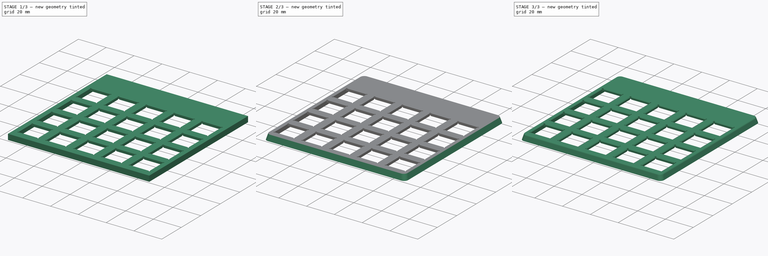
[diagram: build sequence overview — one tinted view per stage of 3, left to right]
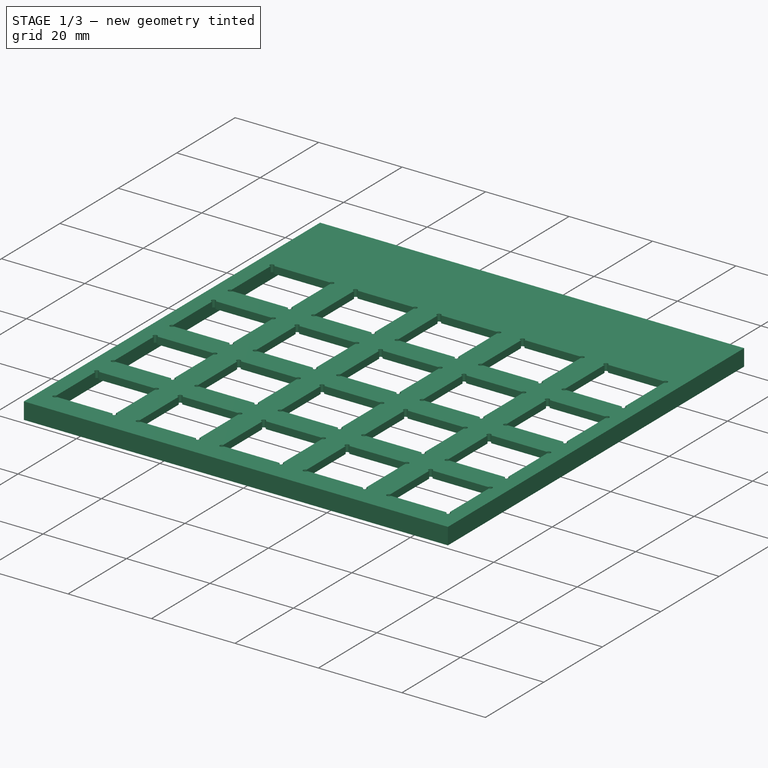
[diagram: stage 1 of 3 — iso view after this stage's code; geometry added in this stage tinted green]
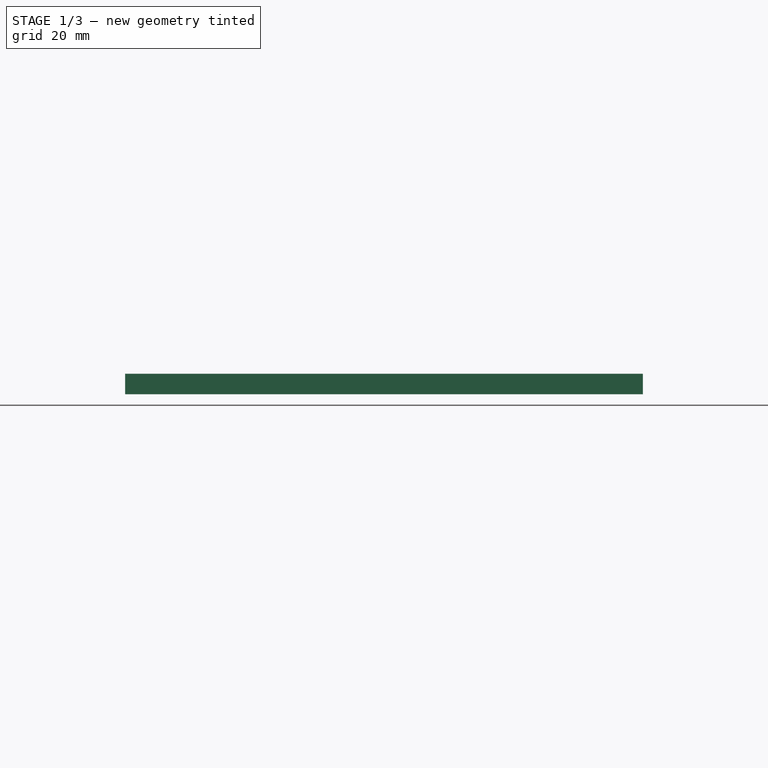
[diagram: stage 1 of 3 — front view after this stage's code; geometry added in this stage tinted green]
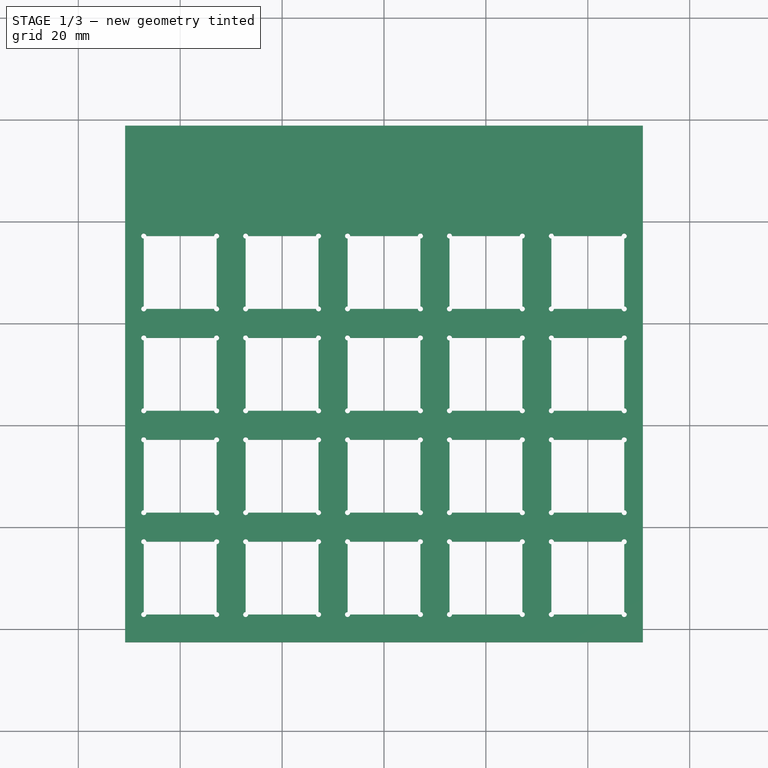
[diagram: stage 1 of 3 — top view after this stage's code; geometry added in this stage tinted green]
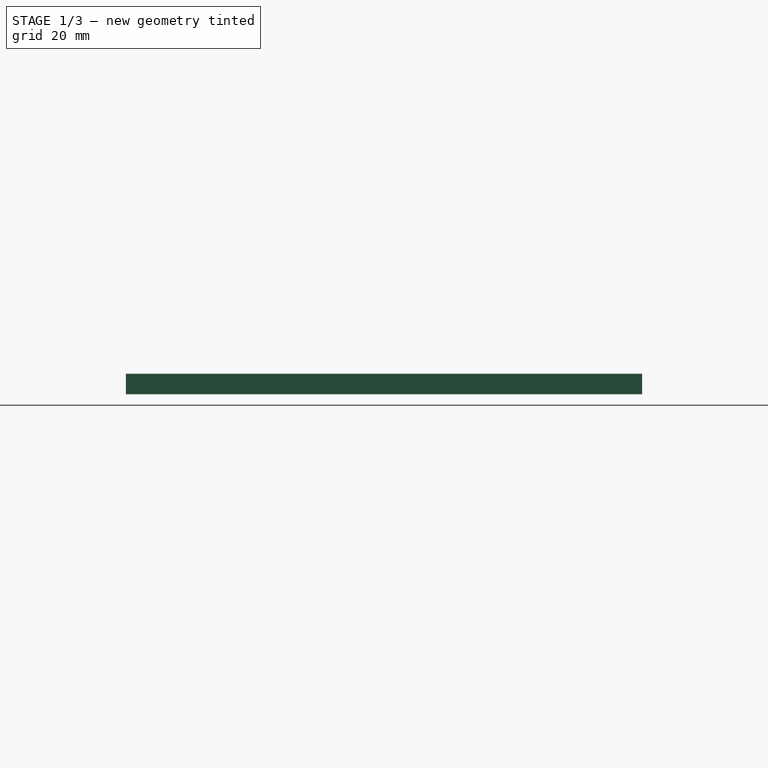
[diagram: stage 1 of 3 — right view after this stage's code; geometry added in this stage tinted green]
FCSTD DOCUMENT  (FreeCAD 0.18R4 (GitTag))
Label: Gehäuse oben
License: All rights reserved
LicenseURL: http://en.wikipedia.org/wiki/All_rights_reserved
objects: Sketcher::SketchObject×4, PartDesign::Pocket×3, PartDesign::Fillet×2, PartDesign::Pad×1, PartDesign::Chamfer×1, PartDesign::Body×1
note: 16 computed .brp shape members not serialized (recipe doc carries the construction recipe); baked Part::Feature solids carry a one-line shape summary decoded from their .brp

FEATURE [Sketcher::SketchObject] Sketch
  MapMode = 5
  Support = -> [XY_Plane]
  sketch-geometry (168):
    g0: LineSegment StartX=-47.15 StartY=-3.35 StartZ=0 EndX=-47.15 EndY=-16.65 EndZ=0
    g1: ArcOfCircle CenterX=-47.15 CenterY=-17.15 CenterZ=0 NormalX=0 NormalY=0 NormalZ=1 AngleXU=0 Radius=0.5 StartAngle=1.5708 EndAngle=6.28319
    g2: LineSegment StartX=-46.65 StartY=-17.15 StartZ=0 EndX=-33.35 EndY=-17.15 EndZ=0
    g3: ArcOfCircle CenterX=-32.85 CenterY=-17.15 CenterZ=0 NormalX=0 NormalY=0 NormalZ=1 AngleXU=0 Radius=0.5 StartAngle=3.14159 EndAngle=7.85398
    g4: LineSegment StartX=-32.85 StartY=-16.65 StartZ=0 EndX=-32.85 EndY=-3.35 EndZ=0
    g5: ArcOfCircle CenterX=-32.85 CenterY=-2.85 CenterZ=0 NormalX=0 NormalY=0 NormalZ=1 AngleXU=0 Radius=0.5 StartAngle=4.71239 EndAngle=9.42478
    g6: LineSegment StartX=-33.35 StartY=-2.85 StartZ=0 EndX=-46.65 EndY=-2.85 EndZ=0
    g7: ArcOfCircle CenterX=-47.15 CenterY=-2.85 CenterZ=0 NormalX=0 NormalY=0 NormalZ=1 AngleXU=0 Radius=0.5 StartAngle=0 EndAngle=4.71239
    g8: LineSegment StartX=-47.15 StartY=-23.35 StartZ=0 EndX=-47.15 EndY=-36.65 EndZ=0
    g9: ArcOfCircle CenterX=-47.15 CenterY=-37.15 CenterZ=0 NormalX=0 NormalY=0 NormalZ=1 AngleXU=0 Radius=0.5 StartAngle=1.5708 EndAngle=6.28319
    g10: LineSegment StartX=-46.65 StartY=-37.15 StartZ=0 EndX=-33.35 EndY=-37.15 EndZ=0
    g11: ArcOfCircle CenterX=-32.85 CenterY=-37.15 CenterZ=0 NormalX=0 NormalY=0 NormalZ=1 AngleXU=0 Radius=0.5 StartAngle=3.14159 EndAngle=7.85398
    g12: LineSegment StartX=-32.85 StartY=-36.65 StartZ=0 EndX=-32.85 EndY=-23.35 EndZ=0
    g13: ArcOfCircle CenterX=-32.85 CenterY=-22.85 CenterZ=0 NormalX=0 NormalY=0 NormalZ=1 AngleXU=0 Radius=0.5 StartAngle=4.71239 EndAngle=9.42478
    g14: LineSegment StartX=-33.35 StartY=-22.85 StartZ=0 EndX=-46.65 EndY=-22.85 EndZ=0
    g15: ArcOfCircle CenterX=-47.15 CenterY=-22.85 CenterZ=0 NormalX=0 NormalY=0 NormalZ=1 AngleXU=0 Radius=0.5 StartAngle=2.4e-15 EndAngle=4.71239
    g16: LineSegment StartX=-47.15 StartY=36.65 StartZ=0 EndX=-47.15 EndY=23.35 EndZ=0
    g17: ArcOfCircle CenterX=-47.15 CenterY=22.85 CenterZ=0 NormalX=0 NormalY=0 NormalZ=1 AngleXU=0 Radius=0.5 StartAngle=1.5708 EndAngle=6.28319
    g18: LineSegment StartX=-46.65 StartY=22.85 StartZ=0 EndX=-33.35 EndY=22.85 EndZ=0
    g19: ArcOfCircle CenterX=-32.85 CenterY=22.85 CenterZ=0 NormalX=0 NormalY=0 NormalZ=1 AngleXU=0 Radius=0.5 StartAngle=3.14159 EndAngle=7.85398
    g20: LineSegment StartX=-32.85 StartY=23.35 StartZ=0 EndX=-32.85 EndY=36.65 EndZ=0
    g21: ArcOfCircle CenterX=-32.85 CenterY=37.15 CenterZ=0 NormalX=0 NormalY=0 NormalZ=1 AngleXU=0 Radius=0.5 StartAngle=4.71239 EndAngle=9.42478
    g22: LineSegment StartX=-33.35 StartY=37.15 StartZ=0 EndX=-46.65 EndY=37.15 EndZ=0
    g23: ArcOfCircle CenterX=-47.15 CenterY=37.15 CenterZ=0 NormalX=0 NormalY=0 NormalZ=1 AngleXU=0 Radius=0.5 StartAngle=-3.6e-15 EndAngle=4.71239
    g24: LineSegment StartX=-47.15 StartY=16.65 StartZ=0 EndX=-47.15 EndY=3.35 EndZ=0
    g25: ArcOfCircle CenterX=-47.15 CenterY=2.85 CenterZ=0 NormalX=0 NormalY=0 NormalZ=1 AngleXU=0 Radius=0.5 StartAngle=1.5708 EndAngle=6.28319
    g26: LineSegment StartX=-46.65 StartY=2.85 StartZ=0 EndX=-33.35 EndY=2.85 EndZ=0
    g27: ArcOfCircle CenterX=-32.85 CenterY=2.85 CenterZ=0 NormalX=0 NormalY=0 NormalZ=1 AngleXU=0 Radius=0.5 StartAngle=3.14159 EndAngle=7.85398
    g28: LineSegment StartX=-32.85 StartY=3.35 StartZ=0 EndX=-32.85 EndY=16.65 EndZ=0
    g29: ArcOfCircle CenterX=-32.85 CenterY=17.15 CenterZ=0 NormalX=0 NormalY=0 NormalZ=1 AngleXU=0 Radius=0.5 StartAngle=4.71239 EndAngle=9.42478
    g30: LineSegment StartX=-33.35 StartY=17.15 StartZ=0 EndX=-46.65 EndY=17.15 EndZ=0
    g31: ArcOfCircle CenterX=-47.15 CenterY=17.15 CenterZ=0 NormalX=0 NormalY=0 NormalZ=1 AngleXU=0 Radius=0.5 StartAngle=-3.6e-15 EndAngle=4.71239
    g32: LineSegment StartX=-27.15 StartY=-3.35 StartZ=0 EndX=-27.15 EndY=-16.65 EndZ=0
    g33: ArcOfCircle CenterX=-27.15 CenterY=-17.15 CenterZ=0 NormalX=0 NormalY=0 NormalZ=1 AngleXU=0 Radius=0.5 StartAngle=1.5708 EndAngle=6.28319
    g34: LineSegment StartX=-26.65 StartY=-17.15 StartZ=0 EndX=-13.35 EndY=-17.15 EndZ=0
    g35: ArcOfCircle CenterX=-12.85 CenterY=-17.15 CenterZ=0 NormalX=0 NormalY=0 NormalZ=1 AngleXU=0 Radius=0.5 StartAngle=3.14159 EndAngle=7.85398
    g36: LineSegment StartX=-12.85 StartY=-16.65 StartZ=0 EndX=-12.85 EndY=-3.35 EndZ=0
    g37: ArcOfCircle CenterX=-12.85 CenterY=-2.85 CenterZ=0 NormalX=0 NormalY=0 NormalZ=1 AngleXU=0 Radius=0.5 StartAngle=4.71239 EndAngle=9.42478
    g38: LineSegment StartX=-13.35 StartY=-2.85 StartZ=0 EndX=-26.65 EndY=-2.85 EndZ=0
    g39: ArcOfCircle CenterX=-27.15 CenterY=-2.85 CenterZ=0 NormalX=0 NormalY=0 NormalZ=1 AngleXU=0 Radius=0.5 StartAngle=-9e-16 EndAngle=4.71239
    g40: LineSegment StartX=-27.15 StartY=-23.35 StartZ=0 EndX=-27.15 EndY=-36.65 EndZ=0
    g41: ArcOfCircle CenterX=-27.15 CenterY=-37.15 CenterZ=0 NormalX=0 NormalY=0 NormalZ=1 AngleXU=0 Radius=0.5 StartAngle=1.5708 EndAngle=6.28319
    g42: LineSegment StartX=-26.65 StartY=-37.15 StartZ=0 EndX=-13.35 EndY=-37.15 EndZ=0
    g43: ArcOfCircle CenterX=-12.85 CenterY=-37.15 CenterZ=0 NormalX=0 NormalY=0 NormalZ=1 AngleXU=0 Radius=0.5 StartAngle=3.14159 EndAngle=7.85398
    g44: LineSegment StartX=-12.85 StartY=-36.65 StartZ=0 EndX=-12.85 EndY=-23.35 EndZ=0
    g45: ArcOfCircle CenterX=-12.85 CenterY=-22.85 CenterZ=0 NormalX=0 NormalY=0 NormalZ=1 AngleXU=0 Radius=0.5 StartAngle=4.71239 EndAngle=9.42478
    g46: LineSegment StartX=-13.35 StartY=-22.85 StartZ=0 EndX=-26.65 EndY=-22.85 EndZ=0
    g47: ArcOfCircle CenterX=-27.15 CenterY=-22.85 CenterZ=0 NormalX=0 NormalY=0 NormalZ=1 AngleXU=0 Radius=0.5 StartAngle=-1.8e-15 EndAngle=4.71239
    g48: LineSegment StartX=-27.15 StartY=36.65 StartZ=0 EndX=-27.15 EndY=23.35 EndZ=0
    g49: ArcOfCircle CenterX=-27.15 CenterY=22.85 CenterZ=0 NormalX=0 NormalY=0 NormalZ=1 AngleXU=0 Radius=0.5 StartAngle=1.5708 EndAngle=6.28319
    g50: LineSegment StartX=-26.65 StartY=22.85 StartZ=0 EndX=-13.35 EndY=22.85 EndZ=0
    g51: ArcOfCircle CenterX=-12.85 CenterY=22.85 CenterZ=0 NormalX=0 NormalY=0 NormalZ=1 AngleXU=0 Radius=0.5 StartAngle=3.14159 EndAngle=7.85398
    g52: LineSegment StartX=-12.85 StartY=23.35 StartZ=0 EndX=-12.85 EndY=36.65 EndZ=0
    g53: ArcOfCircle CenterX=-12.85 CenterY=37.15 CenterZ=0 NormalX=0 NormalY=0 NormalZ=1 AngleXU=0 Radius=0.5 StartAngle=4.71239 EndAngle=9.42478
    g54: LineSegment StartX=-13.35 StartY=37.15 StartZ=0 EndX=-26.65 EndY=37.15 EndZ=0
    g55: ArcOfCircle CenterX=-27.15 CenterY=37.15 CenterZ=0 NormalX=0 NormalY=0 NormalZ=1 AngleXU=0 Radius=0.5 StartAngle=-1.8e-15 EndAngle=4.71239
    g56: LineSegment StartX=-27.15 StartY=16.65 StartZ=0 EndX=-27.15 EndY=3.35 EndZ=0
    g57: ArcOfCircle CenterX=-27.15 CenterY=2.85 CenterZ=0 NormalX=0 NormalY=0 NormalZ=1 AngleXU=0 Radius=0.5 StartAngle=1.5708 EndAngle=6.28319
    g58: LineSegment StartX=-26.65 StartY=2.85 StartZ=0 EndX=-13.35 EndY=2.85 EndZ=0
    g59: ArcOfCircle CenterX=-12.85 CenterY=2.85 CenterZ=0 NormalX=0 NormalY=0 NormalZ=1 AngleXU=0 Radius=0.5 StartAngle=3.14159 EndAngle=7.85398
    g60: LineSegment StartX=-12.85 StartY=3.35 StartZ=0 EndX=-12.85 EndY=16.65 EndZ=0
    g61: ArcOfCircle CenterX=-12.85 CenterY=17.15 CenterZ=0 NormalX=0 NormalY=0 NormalZ=1 AngleXU=0 Radius=0.5 StartAngle=4.71239 EndAngle=9.42478
    g62: LineSegment StartX=-13.35 StartY=17.15 StartZ=0 EndX=-26.65 EndY=17.15 EndZ=0
    g63: ArcOfCircle CenterX=-27.15 CenterY=17.15 CenterZ=0 NormalX=0 NormalY=0 NormalZ=1 AngleXU=0 Radius=0.5 StartAngle=5e-16 EndAngle=4.71239
    g64: LineSegment StartX=-7.15 StartY=-3.35 StartZ=0 EndX=-7.15 EndY=-16.65 EndZ=0
    g65: ArcOfCircle CenterX=-7.15 CenterY=-17.15 CenterZ=0 NormalX=0 NormalY=0 NormalZ=1 AngleXU=0 Radius=0.5 StartAngle=1.5708 EndAngle=6.28319
    g66: LineSegment StartX=-6.65 StartY=-17.15 StartZ=0 EndX=6.65 EndY=-17.15 EndZ=0
    g67: ArcOfCircle CenterX=7.15 CenterY=-17.15 CenterZ=0 NormalX=0 NormalY=0 NormalZ=1 AngleXU=0 Radius=0.5 StartAngle=3.14159 EndAngle=7.85398
    g68: LineSegment StartX=7.15 StartY=-16.65 StartZ=0 EndX=7.15 EndY=-3.35 EndZ=0
    g69: ArcOfCircle CenterX=7.15 CenterY=-2.85 CenterZ=0 NormalX=0 NormalY=0 NormalZ=1 AngleXU=0 Radius=0.5 StartAngle=4.71239 EndAngle=9.42478
    g70: LineSegment StartX=6.65 StartY=-2.85 StartZ=0 EndX=-6.65 EndY=-2.85 EndZ=0
    g71: ArcOfCircle CenterX=-7.15 CenterY=-2.85 CenterZ=0 NormalX=0 NormalY=0 NormalZ=1 AngleXU=0 Radius=0.5 StartAngle=0 EndAngle=4.71239
    g72: LineSegment StartX=-7.15 StartY=-23.35 StartZ=0 EndX=-7.15 EndY=-36.65 EndZ=0
    g73: ArcOfCircle CenterX=-7.15 CenterY=-37.15 CenterZ=0 NormalX=0 NormalY=0 NormalZ=1 AngleXU=0 Radius=0.5 StartAngle=1.5708 EndAngle=6.28319
    g74: LineSegment StartX=-6.65 StartY=-37.15 StartZ=0 EndX=6.65 EndY=-37.15 EndZ=0
    g75: ArcOfCircle CenterX=7.15 CenterY=-37.15 CenterZ=0 NormalX=0 NormalY=0 NormalZ=1 AngleXU=0 Radius=0.5 StartAngle=3.14159 EndAngle=7.85398
    g76: LineSegment StartX=7.15 StartY=-36.65 StartZ=0 EndX=7.15 EndY=-23.35 EndZ=0
    g77: ArcOfCircle CenterX=7.15 CenterY=-22.85 CenterZ=0 NormalX=0 NormalY=0 NormalZ=1 AngleXU=0 Radius=0.5 StartAngle=4.71239 EndAngle=9.42478
    g78: LineSegment StartX=6.65 StartY=-22.85 StartZ=0 EndX=-6.65 EndY=-22.85 EndZ=0
    g79: ArcOfCircle CenterX=-7.15 CenterY=-22.85 CenterZ=0 NormalX=0 NormalY=0 NormalZ=1 AngleXU=0 Radius=0.5 StartAngle=-3.6e-15 EndAngle=4.71239
    g80: LineSegment StartX=-7.15 StartY=36.65 StartZ=0 EndX=-7.15 EndY=23.35 EndZ=0
    g81: ArcOfCircle CenterX=-7.15 CenterY=22.85 CenterZ=0 NormalX=0 NormalY=0 NormalZ=1 AngleXU=0 Radius=0.5 StartAngle=1.5708 EndAngle=6.28319
    g82: LineSegment StartX=-6.65 StartY=22.85 StartZ=0 EndX=6.65 EndY=22.85 EndZ=0
    g83: ArcOfCircle CenterX=7.15 CenterY=22.85 CenterZ=0 NormalX=0 NormalY=0 NormalZ=1 AngleXU=0 Radius=0.5 StartAngle=3.14159 EndAngle=7.85398
    g84: LineSegment StartX=7.15 StartY=23.35 StartZ=0 EndX=7.15 EndY=36.65 EndZ=0
    g85: ArcOfCircle CenterX=7.15 CenterY=37.15 CenterZ=0 NormalX=0 NormalY=0 NormalZ=1 AngleXU=0 Radius=0.5 StartAngle=4.71239 EndAngle=9.42478
    g86: LineSegment StartX=6.65 StartY=37.15 StartZ=0 EndX=-6.65 EndY=37.15 EndZ=0
    g87: ArcOfCircle CenterX=-7.15 CenterY=37.15 CenterZ=0 NormalX=0 NormalY=0 NormalZ=1 AngleXU=0 Radius=0.5 StartAngle=-3.6e-15 EndAngle=4.71239
    g88: LineSegment StartX=-7.15 StartY=16.65 StartZ=0 EndX=-7.15 EndY=3.35 EndZ=0
    g89: ArcOfCircle CenterX=-7.15 CenterY=2.85 CenterZ=0 NormalX=0 NormalY=0 NormalZ=1 AngleXU=0 Radius=0.5 StartAngle=1.5708 EndAngle=6.28319
    g90: LineSegment StartX=-6.65 StartY=2.85 StartZ=0 EndX=6.65 EndY=2.85 EndZ=0
    g91: ArcOfCircle CenterX=7.15 CenterY=2.85 CenterZ=0 NormalX=0 NormalY=0 NormalZ=1 AngleXU=0 Radius=0.5 StartAngle=3.14159 EndAngle=7.85398
    g92: LineSegment StartX=7.15 StartY=3.35 StartZ=0 EndX=7.15 EndY=16.65 EndZ=0
    g93: ArcOfCircle CenterX=7.15 CenterY=17.15 CenterZ=0 NormalX=0 NormalY=0 NormalZ=1 AngleXU=0 Radius=0.5 StartAngle=4.71239 EndAngle=9.42478
    g94: LineSegment StartX=6.65 StartY=17.15 StartZ=0 EndX=-6.65 EndY=17.15 EndZ=0
    g95: ArcOfCircle CenterX=-7.15 CenterY=17.15 CenterZ=0 NormalX=0 NormalY=0 NormalZ=1 AngleXU=0 Radius=0.5 StartAngle=1.6e-15 EndAngle=4.71239
    g96: LineSegment StartX=12.85 StartY=-3.35 StartZ=0 EndX=12.85 EndY=-16.65 EndZ=0
    g97: ArcOfCircle CenterX=12.85 CenterY=-17.15 CenterZ=0 NormalX=0 NormalY=0 NormalZ=1 AngleXU=0 Radius=0.5 StartAngle=1.5708 EndAngle=6.28319
    g98: LineSegment StartX=13.35 StartY=-17.15 StartZ=0 EndX=26.65 EndY=-17.15 EndZ=0
    g99: ArcOfCircle CenterX=27.15 CenterY=-17.15 CenterZ=0 NormalX=0 NormalY=0 NormalZ=1 AngleXU=0 Radius=0.5 StartAngle=3.14159 EndAngle=7.85398
    g100: LineSegment StartX=27.15 StartY=-16.65 StartZ=0 EndX=27.15 EndY=-3.35 EndZ=0
    g101: ArcOfCircle CenterX=27.15 CenterY=-2.85 CenterZ=0 NormalX=0 NormalY=0 NormalZ=1 AngleXU=0 Radius=0.5 StartAngle=4.71239 EndAngle=9.42478
    g102: LineSegment StartX=26.65 StartY=-2.85 StartZ=0 EndX=13.35 EndY=-2.85 EndZ=0
    g103: ArcOfCircle CenterX=12.85 CenterY=-2.85 CenterZ=0 NormalX=0 NormalY=0 NormalZ=1 AngleXU=0 Radius=0.5 StartAngle=0 EndAngle=4.71239
    g104: LineSegment StartX=12.85 StartY=-23.35 StartZ=0 EndX=12.85 EndY=-36.65 EndZ=0
    g105: ArcOfCircle CenterX=12.85 CenterY=-37.15 CenterZ=0 NormalX=0 NormalY=0 NormalZ=1 AngleXU=0 Radius=0.5 StartAngle=1.5708 EndAngle=6.28319
    g106: LineSegment StartX=13.35 StartY=-37.15 StartZ=0 EndX=26.65 EndY=-37.15 EndZ=0
    g107: ArcOfCircle CenterX=27.15 CenterY=-37.15 CenterZ=0 NormalX=0 NormalY=0 NormalZ=1 AngleXU=0 Radius=0.5 StartAngle=3.14159 EndAngle=7.85398
    g108: LineSegment StartX=27.15 StartY=-36.65 StartZ=0 EndX=27.15 EndY=-23.35 EndZ=0
    g109: ArcOfCircle CenterX=27.15 CenterY=-22.85 CenterZ=0 NormalX=0 NormalY=0 NormalZ=1 AngleXU=0 Radius=0.5 StartAngle=4.71239 EndAngle=9.42478
    g110: LineSegment StartX=26.65 StartY=-22.85 StartZ=0 EndX=13.35 EndY=-22.85 EndZ=0
    g111: ArcOfCircle CenterX=12.85 CenterY=-22.85 CenterZ=0 NormalX=0 NormalY=0 NormalZ=1 AngleXU=0 Radius=0.5 StartAngle=8e-16 EndAngle=4.71239
    g112: LineSegment StartX=12.85 StartY=36.65 StartZ=0 EndX=12.85 EndY=23.35 EndZ=0
    g113: ArcOfCircle CenterX=12.85 CenterY=22.85 CenterZ=0 NormalX=0 NormalY=0 NormalZ=1 AngleXU=0 Radius=0.5 StartAngle=1.5708 EndAngle=6.28319
    g114: LineSegment StartX=13.35 StartY=22.85 StartZ=0 EndX=26.65 EndY=22.85 EndZ=0
    g115: ArcOfCircle CenterX=27.15 CenterY=22.85 CenterZ=0 NormalX=0 NormalY=0 NormalZ=1 AngleXU=0 Radius=0.5 StartAngle=3.14159 EndAngle=7.85398
    g116: LineSegment StartX=27.15 StartY=23.35 StartZ=0 EndX=27.15 EndY=36.65 EndZ=0
    g117: ArcOfCircle CenterX=27.15 CenterY=37.15 CenterZ=0 NormalX=0 NormalY=0 NormalZ=1 AngleXU=0 Radius=0.5 StartAngle=4.71239 EndAngle=9.42478
    g118: LineSegment StartX=26.65 StartY=37.15 StartZ=0 EndX=13.35 EndY=37.15 EndZ=0
    g119: ArcOfCircle CenterX=12.85 CenterY=37.15 CenterZ=0 NormalX=0 NormalY=0 NormalZ=1 AngleXU=0 Radius=0.5 StartAngle=-2.7e-15 EndAngle=4.71239
    g120: LineSegment StartX=12.85 StartY=16.65 StartZ=0 EndX=12.85 EndY=3.35 EndZ=0
    g121: ArcOfCircle CenterX=12.85 CenterY=2.85 CenterZ=0 NormalX=0 NormalY=0 NormalZ=1 AngleXU=0 Radius=0.5 StartAngle=1.5708 EndAngle=6.28319
    g122: LineSegment StartX=13.35 StartY=2.85 StartZ=0 EndX=26.65 EndY=2.85 EndZ=0
    g123: ArcOfCircle CenterX=27.15 CenterY=2.85 CenterZ=0 NormalX=0 NormalY=0 NormalZ=1 AngleXU=0 Radius=0.5 StartAngle=3.14159 EndAngle=7.85398
    g124: LineSegment StartX=27.15 StartY=3.35 StartZ=0 EndX=27.15 EndY=16.65 EndZ=0
    g125: ArcOfCircle CenterX=27.15 CenterY=17.15 CenterZ=0 NormalX=0 NormalY=0 NormalZ=1 AngleXU=0 Radius=0.5 StartAngle=4.71239 EndAngle=9.42478
    g126: LineSegment StartX=26.65 StartY=17.15 StartZ=0 EndX=13.35 EndY=17.15 EndZ=0
    g127: ArcOfCircle CenterX=12.85 CenterY=17.15 CenterZ=0 NormalX=0 NormalY=0 NormalZ=1 AngleXU=0 Radius=0.5 StartAngle=1e-15 EndAngle=4.71239
    g128: LineSegment StartX=32.85 StartY=-3.35217 StartZ=0 EndX=32.85 EndY=-16.6478 EndZ=0
    g129: ArcOfCircle CenterX=32.85 CenterY=-17.15 CenterZ=0 NormalX=0 NormalY=0 NormalZ=1 AngleXU=0 Radius=0.502169 StartAngle=1.5708 EndAngle=6.28319
    g130: LineSegment StartX=33.3522 StartY=-17.15 StartZ=0 EndX=46.6478 EndY=-17.15 EndZ=0
    g131: ArcOfCircle CenterX=47.15 CenterY=-17.15 CenterZ=0 NormalX=0 NormalY=0 NormalZ=1 AngleXU=0 Radius=0.502169 StartAngle=3.14159 EndAngle=7.85398
    g132: LineSegment StartX=47.15 StartY=-16.6478 StartZ=0 EndX=47.15 EndY=-3.35217 EndZ=0
    g133: ArcOfCircle CenterX=47.15 CenterY=-2.85 CenterZ=0 NormalX=0 NormalY=0 NormalZ=1 AngleXU=0 Radius=0.502169 StartAngle=4.71239 EndAngle=9.42478
    g134: LineSegment StartX=46.6478 StartY=-2.85 StartZ=0 EndX=33.3522 EndY=-2.85 EndZ=0
    g135: ArcOfCircle CenterX=32.85 CenterY=-2.85 CenterZ=0 NormalX=0 NormalY=0 NormalZ=1 AngleXU=0 Radius=0.502169 StartAngle=0 EndAngle=4.71239
    g136: LineSegment StartX=32.85 StartY=-23.3522 StartZ=0 EndX=32.85 EndY=-36.6478 EndZ=0
    g137: ArcOfCircle CenterX=32.85 CenterY=-37.15 CenterZ=0 NormalX=0 NormalY=0 NormalZ=1 AngleXU=0 Radius=0.502169 StartAngle=1.5708 EndAngle=6.28319
    g138: LineSegment StartX=33.3522 StartY=-37.15 StartZ=0 EndX=46.6478 EndY=-37.15 EndZ=0
    g139: ArcOfCircle CenterX=47.15 CenterY=-37.15 CenterZ=0 NormalX=0 NormalY=0 NormalZ=1 AngleXU=0 Radius=0.502169 StartAngle=3.14159 EndAngle=7.85398
    g140: LineSegment StartX=47.15 StartY=-36.6478 StartZ=0 EndX=47.15 EndY=-23.3522 EndZ=0
    g141: ArcOfCircle CenterX=47.15 CenterY=-22.85 CenterZ=0 NormalX=0 NormalY=0 NormalZ=1 AngleXU=0 Radius=0.502169 StartAngle=4.71239 EndAngle=9.42478
    g142: LineSegment StartX=46.6478 StartY=-22.85 StartZ=0 EndX=33.3522 EndY=-22.85 EndZ=0
    g143: ArcOfCircle CenterX=32.85 CenterY=-22.85 CenterZ=0 NormalX=0 NormalY=0 NormalZ=1 AngleXU=0 Radius=0.502169 StartAngle=-1.8e-15 EndAngle=4.71239
    g144: LineSegment StartX=32.85 StartY=36.6478 StartZ=0 EndX=32.85 EndY=23.3522 EndZ=0
    g145: ArcOfCircle CenterX=32.85 CenterY=22.85 CenterZ=0 NormalX=0 NormalY=0 NormalZ=1 AngleXU=0 Radius=0.502169 StartAngle=1.5708 EndAngle=6.28319
    g146: LineSegment StartX=33.3522 StartY=22.85 StartZ=0 EndX=46.6478 EndY=22.85 EndZ=0
    g147: ArcOfCircle CenterX=47.15 CenterY=22.85 CenterZ=0 NormalX=0 NormalY=0 NormalZ=1 AngleXU=0 Radius=0.502169 StartAngle=3.14159 EndAngle=7.85398
    g148: LineSegment StartX=47.15 StartY=23.3522 StartZ=0 EndX=47.15 EndY=36.6478 EndZ=0
    g149: ArcOfCircle CenterX=47.15 CenterY=37.15 CenterZ=0 NormalX=0 NormalY=0 NormalZ=1 AngleXU=0 Radius=0.502169 StartAngle=4.71239 EndAngle=9.42478
    g150: LineSegment StartX=46.6478 StartY=37.15 StartZ=0 EndX=33.3522 EndY=37.15 EndZ=0
    g151: ArcOfCircle CenterX=32.85 CenterY=37.15 CenterZ=0 NormalX=0 NormalY=0 NormalZ=1 AngleXU=0 Radius=0.502169 StartAngle=-5.3e-15 EndAngle=4.71239
    g152: LineSegment StartX=32.85 StartY=16.6478 StartZ=0 EndX=32.85 EndY=3.35217 EndZ=0
    g153: ArcOfCircle CenterX=32.85 CenterY=2.85 CenterZ=0 NormalX=0 NormalY=0 NormalZ=1 AngleXU=0 Radius=0.502169 StartAngle=1.5708 EndAngle=6.28319
    g154: LineSegment StartX=33.3522 StartY=2.85 StartZ=0 EndX=46.6478 EndY=2.85 EndZ=0
    g155: ArcOfCircle CenterX=47.15 CenterY=2.85 CenterZ=0 NormalX=0 NormalY=0 NormalZ=1 AngleXU=0 Radius=0.502169 StartAngle=3.14159 EndAngle=7.85398
    g156: LineSegment StartX=47.15 StartY=3.35217 StartZ=0 EndX=47.15 EndY=16.6478 EndZ=0
    g157: ArcOfCircle CenterX=47.15 CenterY=17.15 CenterZ=0 NormalX=0 NormalY=0 NormalZ=1 AngleXU=0 Radius=0.502169 StartAngle=4.71239 EndAngle=9.42478
    g158: LineSegment StartX=46.6478 StartY=17.15 StartZ=0 EndX=33.3522 EndY=17.15 EndZ=0
    g159: ArcOfCircle CenterX=32.85 CenterY=17.15 CenterZ=0 NormalX=0 NormalY=0 NormalZ=1 AngleXU=0 Radius=0.502169 StartAngle=-1.8e-15 EndAngle=4.71239
    g160: LineSegment [constr] StartX=-48 StartY=56 StartZ=0 EndX=48 EndY=56 EndZ=0
    g161: LineSegment [constr] StartX=48 StartY=56 StartZ=0 EndX=48 EndY=-39.75 EndZ=0
    g162: LineSegment [constr] StartX=48 StartY=-39.75 StartZ=0 EndX=-48 EndY=-39.75 EndZ=0
    g163: LineSegment [constr] StartX=-48 StartY=-39.75 StartZ=0 EndX=-48 EndY=56 EndZ=0
    g164: LineSegment StartX=-50.8 StartY=58.8 StartZ=0 EndX=-50.8 EndY=-42.55 EndZ=0
    g165: LineSegment StartX=-50.8 StartY=-42.55 StartZ=0 EndX=50.8 EndY=-42.55 EndZ=0
    g166: LineSegment StartX=50.8 StartY=-42.55 StartZ=0 EndX=50.8 EndY=58.8 EndZ=0
    g167: LineSegment StartX=50.8 StartY=58.8 StartZ=0 EndX=-50.8 EndY=58.8 EndZ=0
  constraints (502):
    c: Vertical(g0)
    c: Perpendicular(g0,g1) = 4.71239
    c: Coincident(g1,g2)
    c: Horizontal(g2)
    c: Perpendicular(g2,g3) = 4.71239
    c: Vertical(g4)
    c: Perpendicular(g4,g5) = 4.71239
    c: Coincident(g5,g6)
    c: Perpendicular(g6,g7) = 4.71239
    c: Coincident(g7,g0)
    c: Perpendicular(g3,g4)
    c: Horizontal(g1,g1)
    c: Horizontal(g6)
    c: Horizontal(g5,g5)
    c: Equal(g5,g3)
    c: Equal(g3,g7)
    c: Coincident(g4,g3)
    c: Equal(g4,g2)
    c: Equal(g2,g0)
    c: Equal(g0,g6)
    c: Radius(g3) = 0.5
    c: DistanceX(g0,g3) = 14.3
    c: Vertical(g8)
    c: Perpendicular(g8,g9) = 4.71239
    c: Coincident(g9,g10)
    c: Horizontal(g10)
    c: Perpendicular(g10,g11) = 4.71239
    c: Vertical(g12)
    c: Perpendicular(g12,g13) = 4.71239
    c: Coincident(g13,g14)
    c: Perpendicular(g14,g15) = 4.71239
    c: Coincident(g15,g8)
    c: Perpendicular(g11,g12)
    c: Horizontal(g9,g9)
    c: Horizontal(g14)
    c: Horizontal(g13,g13)
    c: Equal(g13,g11)
    c: Equal(g11,g15)
    c: Coincident(g12,g11)
    c: Equal(g12,g10)
    c: Equal(g10,g8)
    c: Equal(g8,g14)
    c: Equal(g3,g11) = 0.5
    c: DistanceX(g8,g11) = 14.3
    c: DistanceY(g13,g3) = 5.7
    c: Vertical(g13,g3)
    c: Vertical(g16)
    c: Perpendicular(g16,g17) = 4.71239
    c: Coincident(g17,g18)
    c: Horizontal(g18)
    c: Perpendicular(g18,g19) = 4.71239
    c: Vertical(g20)
    c: Perpendicular(g20,g21) = 4.71239
    c: Coincident(g21,g22)
    c: Perpendicular(g22,g23) = 4.71239
    c: Coincident(g23,g16)
    c: Perpendicular(g19,g20)
    c: Horizontal(g17,g17)
    c: Horizontal(g22)
    c: Horizontal(g21,g21)
    c: Equal(g21,g19)
    c: Equal(g19,g23)
    c: Coincident(g20,g19)
    c: Equal(g20,g18)
    c: Equal(g18,g16)
    c: Equal(g16,g22)
    c: Equal(g3,g19) = 0.5
    c: DistanceX(g16,g19) = 14.3
    c: Vertical(g24)
    c: Perpendicular(g24,g25) = 4.71239
    c: Coincident(g25,g26)
    c: Horizontal(g26)
    c: Perpendicular(g26,g27) = 4.71239
    c: Vertical(g28)
    c: Perpendicular(g28,g29) = 4.71239
    c: Coincident(g29,g30)
    c: Perpendicular(g30,g31) = 4.71239
    c: Coincident(g31,g24)
    c: Perpendicular(g27,g28)
    c: Horizontal(g25,g25)
    c: Horizontal(g30)
    c: Horizontal(g29,g29)
    c: Equal(g29,g27)
    c: Equal(g27,g31)
    c: Coincident(g28,g27)
    c: Equal(g28,g26)
    c: Equal(g26,g24)
    c: Equal(g24,g30)
    c: Equal(g19,g27) = 0.5
    c: DistanceX(g24,g27) = 14.3
    c: DistanceY(g29,g19) = 5.7
    c: Vertical(g29,g19)
    c: Vertical(g5,g27)
    c: DistanceY(g5,g27) = 5.7
    c: Vertical(g32)
    c: Perpendicular(g32,g33) = 4.71239
    c: Coincident(g33,g34)
    c: Horizontal(g34)
    c: Perpendicular(g34,g35) = 4.71239
    c: Vertical(g36)
    c: Perpendicular(g36,g37) = 4.71239
    c: Coincident(g37,g38)
    c: Perpendicular(g38,g39) = 4.71239
    c: Coincident(g39,g32)
    c: Perpendicular(g35,g36)
    c: Horizontal(g33,g33)
    c: Horizontal(g38)
    c: Horizontal(g37,g37)
    c: Equal(g37,g35)
    c: Equal(g35,g39)
    c: Coincident(g36,g35)
    c: Equal(g36,g34)
    c: Equal(g34,g32)
    c: Equal(g32,g38)
    c: Equal(g3,g35) = 0.5
    c: DistanceX(g32,g35) = 14.3
    c: Vertical(g40)
    c: Perpendicular(g40,g41) = 4.71239
    c: Coincident(g41,g42)
    c: Horizontal(g42)
    c: Perpendicular(g42,g43) = 4.71239
    c: Vertical(g44)
    c: Perpendicular(g44,g45) = 4.71239
    c: Coincident(g45,g46)
    c: Perpendicular(g46,g47) = 4.71239
    c: Coincident(g47,g40)
    c: Perpendicular(g43,g44)
    c: Horizontal(g41,g41)
    c: Horizontal(g46)
    c: Horizontal(g45,g45)
    c: Equal(g45,g43)
    c: Equal(g43,g47)
    c: Coincident(g44,g43)
    c: Equal(g44,g42)
    c: Equal(g42,g40)
    c: Equal(g40,g46)
    c: Equal(g35,g43) = 0.5
    c: DistanceX(g40,g43) = 14.3
    c: DistanceY(g45,g35) = 5.7
    c: Vertical(g45,g35)
    c: Vertical(g48)
    c: Perpendicular(g48,g49) = 4.71239
    c: Coincident(g49,g50)
    c: Horizontal(g50)
    c: Perpendicular(g50,g51) = 4.71239
    c: Vertical(g52)
    c: Perpendicular(g52,g53) = 4.71239
    c: Coincident(g53,g54)
    c: Perpendicular(g54,g55) = 4.71239
    c: Coincident(g55,g48)
    c: Perpendicular(g51,g52)
    c: Horizontal(g49,g49)
    c: Horizontal(g54)
    c: Horizontal(g53,g53)
    c: Equal(g53,g51)
    c: Equal(g51,g55)
    c: Coincident(g52,g51)
    c: Equal(g52,g50)
    c: Equal(g50,g48)
    c: Equal(g48,g54)
    c: Equal(g35,g51) = 0.5
    c: DistanceX(g48,g51) = 14.3
    c: Vertical(g56)
    c: Perpendicular(g56,g57) = 4.71239
    c: Coincident(g57,g58)
    c: Horizontal(g58)
    c: Perpendicular(g58,g59) = 4.71239
    c: Vertical(g60)
    c: Perpendicular(g60,g61) = 4.71239
    c: Coincident(g61,g62)
    c: Perpendicular(g62,g63) = 4.71239
    c: Coincident(g63,g56)
    c: Perpendicular(g59,g60)
    c: Horizontal(g57,g57)
    c: Horizontal(g62)
    c: Horizontal(g61,g61)
    c: Equal(g61,g59)
    c: Equal(g59,g63)
    c: Coincident(g60,g59)
    c: Equal(g60,g58)
    c: Equal(g58,g56)
    c: Equal(g56,g62)
    c: Equal(g51,g59) = 0.5
    c: DistanceX(g56,g59) = 14.3
    c: DistanceY(g61,g51) = 5.7
    c: Vertical(g61,g51)
    c: Vertical(g37,g59)
    c: DistanceY(g37,g59) = 5.7
    c: Horizontal(g27,g57)
    c: DistanceX(g27,g57) = 5.7
    c: Vertical(g64)
    c: Perpendicular(g64,g65) = 4.71239
    c: Coincident(g65,g66)
    c: Horizontal(g66)
    c: Perpendicular(g66,g67) = 4.71239
    c: Vertical(g68)
    c: Perpendicular(g68,g69) = 4.71239
    c: Coincident(g69,g70)
    c: Perpendicular(g70,g71) = 4.71239
    c: Coincident(g71,g64)
    c: Perpendicular(g67,g68)
    c: Horizontal(g65,g65)
    c: Horizontal(g70)
    c: Horizontal(g69,g69)
    c: Equal(g69,g67)
    c: Equal(g67,g71)
    c: Coincident(g68,g67)
    c: Equal(g68,g66)
    c: Equal(g66,g64)
    c: Equal(g64,g70)
    c: Equal(g3,g67) = 0.5
    c: DistanceX(g64,g67) = 14.3
    c: Vertical(g72)
    c: Perpendicular(g72,g73) = 4.71239
    c: Coincident(g73,g74)
    c: Horizontal(g74)
    c: Perpendicular(g74,g75) = 4.71239
    c: Vertical(g76)
    c: Perpendicular(g76,g77) = 4.71239
    c: Coincident(g77,g78)
    c: Perpendicular(g78,g79) = 4.71239
    c: Coincident(g79,g72)
    c: Perpendicular(g75,g76)
    c: Horizontal(g73,g73)
    c: Horizontal(g78)
    c: Horizontal(g77,g77)
    c: Equal(g77,g75)
    c: Equal(g75,g79)
    c: Coincident(g76,g75)
    c: Equal(g76,g74)
    c: Equal(g74,g72)
    c: Equal(g72,g78)
    c: Equal(g67,g75) = 0.5
    c: DistanceX(g72,g75) = 14.3
    c: DistanceY(g77,g67) = 5.7
    c: Vertical(g77,g67)
    c: Vertical(g80)
    c: Perpendicular(g80,g81) = 4.71239
    c: Coincident(g81,g82)
    c: Horizontal(g82)
    c: Perpendicular(g82,g83) = 4.71239
    c: Vertical(g84)
    c: Perpendicular(g84,g85) = 4.71239
    c: Coincident(g85,g86)
    c: Perpendicular(g86,g87) = 4.71239
    c: Coincident(g87,g80)
    c: Perpendicular(g83,g84)
    c: Horizontal(g81,g81)
    c: Horizontal(g86)
    c: Horizontal(g85,g85)
    c: Equal(g85,g83)
    c: Equal(g83,g87)
    c: Coincident(g84,g83)
    c: Equal(g84,g82)
    c: Equal(g82,g80)
    c: Equal(g80,g86)
    c: Equal(g67,g83) = 0.5
    c: DistanceX(g80,g83) = 14.3
    c: Vertical(g88)
    c: Perpendicular(g88,g89) = 4.71239
    c: Coincident(g89,g90)
    c: Horizontal(g90)
    c: Perpendicular(g90,g91) = 4.71239
    c: Vertical(g92)
    c: Perpendicular(g92,g93) = 4.71239
    c: Coincident(g93,g94)
    c: Perpendicular(g94,g95) = 4.71239
    c: Coincident(g95,g88)
    c: Perpendicular(g91,g92)
    c: Horizontal(g89,g89)
    c: Horizontal(g94)
    c: Horizontal(g93,g93)
    c: Equal(g93,g91)
    c: Equal(g91,g95)
    c: Coincident(g92,g91)
    c: Equal(g92,g90)
    c: Equal(g90,g88)
    c: Equal(g88,g94)
    c: Equal(g83,g91) = 0.5
    c: DistanceX(g88,g91) = 14.3
    c: DistanceY(g93,g83) = 5.7
    c: Vertical(g93,g83)
    c: Vertical(g69,g91)
    c: DistanceY(g69,g91) = 5.7
    c: Vertical(g96)
    c: Perpendicular(g96,g97) = 4.71239
    c: Coincident(g97,g98)
    c: Horizontal(g98)
    c: Perpendicular(g98,g99) = 4.71239
    c: Vertical(g100)
    c: Perpendicular(g100,g101) = 4.71239
    c: Coincident(g101,g102)
    c: Perpendicular(g102,g103) = 4.71239
    c: Coincident(g103,g96)
    c: Perpendicular(g99,g100)
    c: Horizontal(g97,g97)
    c: Horizontal(g102)
    c: Horizontal(g101,g101)
    c: Equal(g101,g99)
    c: Equal(g99,g103)
    c: Coincident(g100,g99)
    c: Equal(g100,g98)
    c: Equal(g98,g96)
    c: Equal(g96,g102)
    c: Equal(g67,g99) = 0.5
    c: DistanceX(g96,g99) = 14.3
    c: Vertical(g104)
    c: Perpendicular(g104,g105) = 4.71239
    c: Coincident(g105,g106)
    c: Horizontal(g106)
    c: Perpendicular(g106,g107) = 4.71239
    c: Vertical(g108)
    c: Perpendicular(g108,g109) = 4.71239
    c: Coincident(g109,g110)
    c: Perpendicular(g110,g111) = 4.71239
    c: Coincident(g111,g104)
    c: Perpendicular(g107,g108)
    c: Horizontal(g105,g105)
    c: Horizontal(g110)
    c: Horizontal(g109,g109)
    c: Equal(g109,g107)
    c: Equal(g107,g111)
    c: Coincident(g108,g107)
    c: Equal(g108,g106)
    c: Equal(g106,g104)
    c: Equal(g104,g110)
    c: Equal(g99,g107) = 0.5
    c: DistanceX(g104,g107) = 14.3
    c: DistanceY(g109,g99) = 5.7
    c: Vertical(g109,g99)
    c: Vertical(g112)
    c: Perpendicular(g112,g113) = 4.71239
    c: Coincident(g113,g114)
    c: Horizontal(g114)
    c: Perpendicular(g114,g115) = 4.71239
    c: Vertical(g116)
    c: Perpendicular(g116,g117) = 4.71239
    c: Coincident(g117,g118)
    c: Perpendicular(g118,g119) = 4.71239
    c: Coincident(g119,g112)
    c: Perpendicular(g115,g116)
    c: Horizontal(g113,g113)
    c: Horizontal(g118)
    c: Horizontal(g117,g117)
    c: Equal(g117,g115)
    c: Equal(g115,g119)
    c: Coincident(g116,g115)
    c: Equal(g116,g114)
    c: Equal(g114,g112)
    c: Equal(g112,g118)
    c: Equal(g99,g115) = 0.5
    c: DistanceX(g112,g115) = 14.3
    c: Vertical(g120)
    c: Perpendicular(g120,g121) = 4.71239
    c: Coincident(g121,g122)
    c: Horizontal(g122)
    c: Perpendicular(g122,g123) = 4.71239
    c: Vertical(g124)
    c: Perpendicular(g124,g125) = 4.71239
    c: Coincident(g125,g126)
    c: Perpendicular(g126,g127) = 4.71239
    c: Coincident(g127,g120)
    c: Perpendicular(g123,g124)
    c: Horizontal(g121,g121)
    c: Horizontal(g126)
    c: Horizontal(g125,g125)
    c: Equal(g125,g123)
    c: Equal(g123,g127)
    c: Coincident(g124,g123)
    c: Equal(g124,g122)
    c: Equal(g122,g120)
    c: Equal(g120,g126)
    c: Equal(g115,g123) = 0.5
    c: DistanceX(g120,g123) = 14.3
    c: DistanceY(g125,g115) = 5.7
    c: Vertical(g125,g115)
    c: Vertical(g101,g123)
    c: DistanceY(g101,g123) = 5.7
    c: Horizontal(g91,g121)
    c: DistanceX(g91,g121) = 5.7
    c: Horizontal(g61,g95)
    c: DistanceX(g61,g95) = 5.7
    c: DistanceX(g81,g-1) = 7.15
    c: Vertical(g128)
    c: Perpendicular(g128,g129) = 4.71239
    c: Coincident(g129,g130)
    c: Horizontal(g130)
    c: Perpendicular(g130,g131) = 4.71239
    c: Vertical(g132)
    c: Perpendicular(g132,g133) = 4.71239
    c: Coincident(g133,g134)
    c: Perpendicular(g134,g135) = 4.71239
    c: Coincident(g135,g128)
    c: Perpendicular(g131,g132)
    c: Horizontal(g129,g129)
    c: Horizontal(g134)
    c: Horizontal(g133,g133)
    c: Equal(g133,g131)
    c: Equal(g131,g135)
    c: Coincident(g132,g131)
    c: Equal(g132,g130)
    c: Equal(g130,g128)
    c: Equal(g128,g134)
    c: DistanceX(g128,g131) = 14.3
    c: Vertical(g136)
    c: Perpendicular(g136,g137) = 4.71239
    c: Coincident(g137,g138)
    c: Horizontal(g138)
    c: Perpendicular(g138,g139) = 4.71239
    c: Vertical(g140)
    c: Perpendicular(g140,g141) = 4.71239
    c: Coincident(g141,g142)
    c: Perpendicular(g142,g143) = 4.71239
    c: Coincident(g143,g136)
    c: Perpendicular(g139,g140)
    c: Horizontal(g137,g137)
    c: Horizontal(g142)
    c: Horizontal(g141,g141)
    c: Equal(g141,g139)
    c: Equal(g139,g143)
    c: Coincident(g140,g139)
    c: Equal(g140,g138)
    c: Equal(g138,g136)
    c: Equal(g136,g142)
    c: Equal(g131,g139) = 0.5
    c: DistanceX(g136,g139) = 14.3
    c: DistanceY(g141,g131) = 5.7
    c: Vertical(g141,g131)
    c: Vertical(g144)
    c: Perpendicular(g144,g145) = 4.71239
    c: Coincident(g145,g146)
    c: Horizontal(g146)
    c: Perpendicular(g146,g147) = 4.71239
    c: Vertical(g148)
    c: Perpendicular(g148,g149) = 4.71239
    c: Coincident(g149,g150)
    c: Perpendicular(g150,g151) = 4.71239
    c: Coincident(g151,g144)
    c: Perpendicular(g147,g148)
    c: Horizontal(g145,g145)
    c: Horizontal(g150)
    c: Horizontal(g149,g149)
    c: Equal(g149,g147)
    c: Equal(g147,g151)
    c: Coincident(g148,g147)
    c: Equal(g148,g146)
    c: Equal(g146,g144)
    c: Equal(g144,g150)
    c: Equal(g131,g147) = 0.5
    c: DistanceX(g144,g147) = 14.3
    c: Vertical(g152)
    c: Perpendicular(g152,g153) = 4.71239
    c: Coincident(g153,g154)
    c: Horizontal(g154)
    c: Perpendicular(g154,g155) = 4.71239
    c: Vertical(g156)
    c: Perpendicular(g156,g157) = 4.71239
    c: Coincident(g157,g158)
    c: Perpendicular(g158,g159) = 4.71239
    c: Coincident(g159,g152)
    c: Perpendicular(g155,g156)
    c: Horizontal(g153,g153)
    c: Horizontal(g158)
    c: Horizontal(g157,g157)
    c: Equal(g157,g155)
    c: Equal(g155,g159)
    c: Coincident(g156,g155)
    c: Equal(g156,g154)
    c: Equal(g154,g152)
    c: Equal(g152,g158)
    c: Equal(g147,g155) = 0.5
    c: DistanceX(g152,g155) = 14.3
    c: DistanceY(g157,g147) = 5.7
    c: Vertical(g157,g147)
    c: Vertical(g133,g155)
    c: DistanceY(g133,g155) = 5.7
    c: Horizontal(g125,g159)
    c: DistanceX(g125,g159) = 5.7
    c: Coincident(g160,g161)
    c: Coincident(g161,g162)
    c: Coincident(g162,g163)
    c: Coincident(g163,g160)
    c: Horizontal(g160)
    c: Vertical(g161)
    c: Vertical(g163)
    c: Symmetric(g162,g161,g-2)
    c: DistanceY(g162,g9) = 2.6
    c: DistanceY(g23,g160) = 18.85
    c: Vertical(g164)
    c: Coincident(g164,g165)
    c: Horizontal(g165)
    c: Coincident(g165,g166)
    c: Vertical(g166)
    c: Coincident(g166,g167)
    c: Coincident(g167,g164)
    c: Horizontal(g167)
    c: DistanceX(g160,g166) = 2.8
    c: DistanceY(g160,g166) = 2.8
    c: DistanceX(g164,g160) = 2.8
    c: DistanceX(g160,g160) = 96
    c: DistanceY(g165,g161) = 2.8
    c: DistanceY(g-1,g89) = 2.85
FEATURE [PartDesign::Pad] Pad
  Length = 4
  Length2 = 100
  Profile = -> Sketch
  Type = 0
FEATURE [Sketcher::SketchObject] Sketch001
  ExternalGeometry = -> [Pad]
  MapMode = 5
  Placement = pos=(0,0,0) rot=(1,0,0;3.14159rad)
  Support = -> [Pad]
  sketch-geometry (4):
    g0: LineSegment StartX=-48.5 StartY=40.15 StartZ=0 EndX=48.5 EndY=40.15 EndZ=0
    g1: LineSegment StartX=48.5 StartY=40.15 StartZ=0 EndX=48.5 EndY=-56.35 EndZ=0
    g2: LineSegment StartX=48.5 StartY=-56.35 StartZ=0 EndX=-48.5 EndY=-56.35 EndZ=0
    g3: LineSegment StartX=-48.5 StartY=-56.35 StartZ=0 EndX=-48.5 EndY=40.15 EndZ=0
  constraints (13):
    c: Coincident(g0,g1)
    c: Coincident(g1,g2)
    c: Coincident(g2,g3)
    c: Coincident(g3,g0)
    c: Horizontal(g0)
    c: Vertical(g1)
    c: Vertical(g3)
    c: Symmetric(g2,g1,g-2)
    c: DistanceX(g2,g2) = 97
    c: DistanceY(g1,g1) = 96.5
    c: DistanceY(g0,g-3) = 2.4
    c: DistanceY(g-4,g-3) = 101.35
    c: DistanceX(g-3,g-3) = 101.6
FEATURE [PartDesign::Pocket] Pocket
  BaseFeature = -> Pad
  Length = 2.3
  Length2 = 100
  Profile = -> Sketch001
  Type = 0
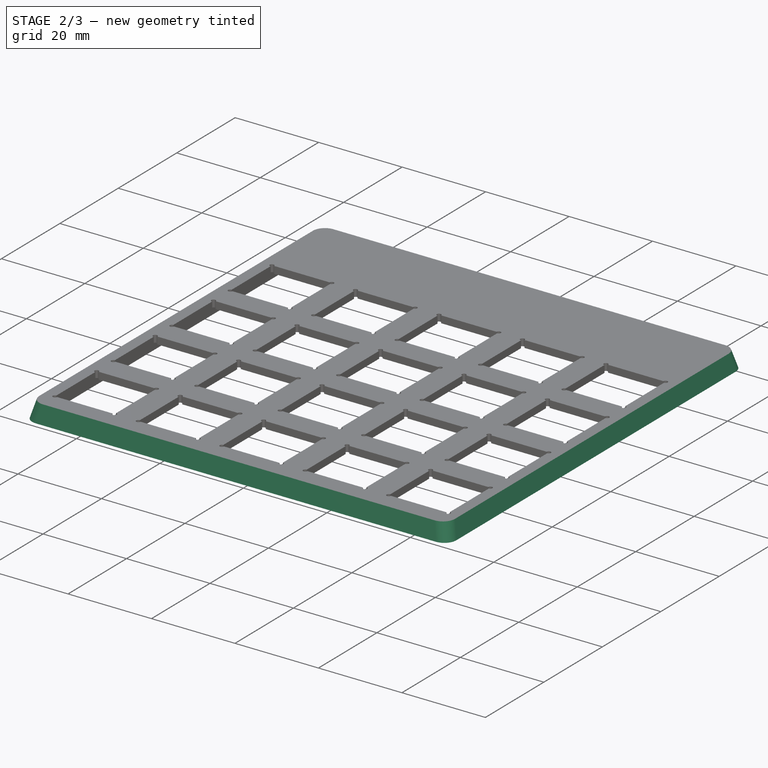
[diagram: stage 2 of 3 — iso view after this stage's code; geometry added in this stage tinted green]
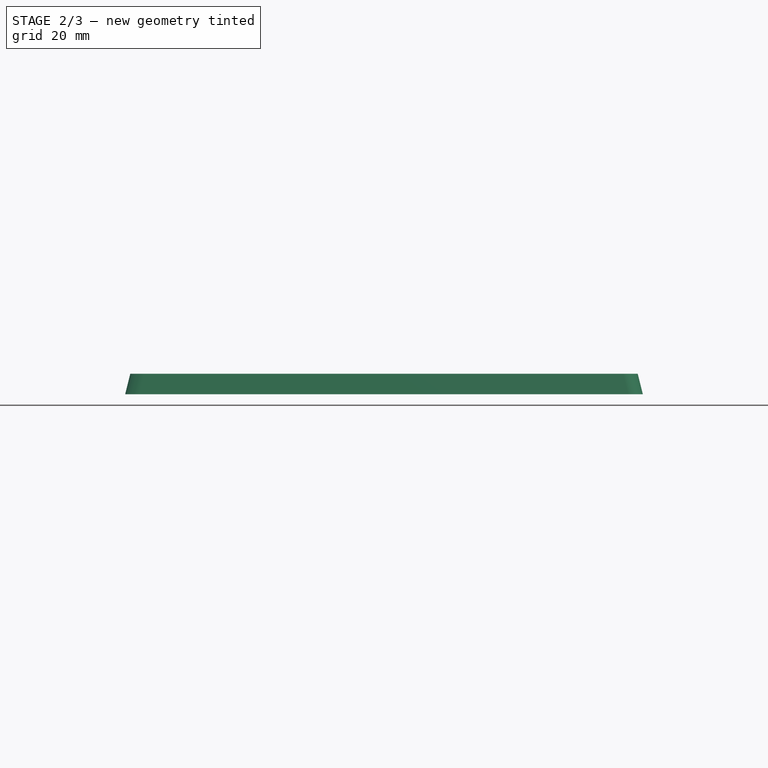
[diagram: stage 2 of 3 — front view after this stage's code; geometry added in this stage tinted green]
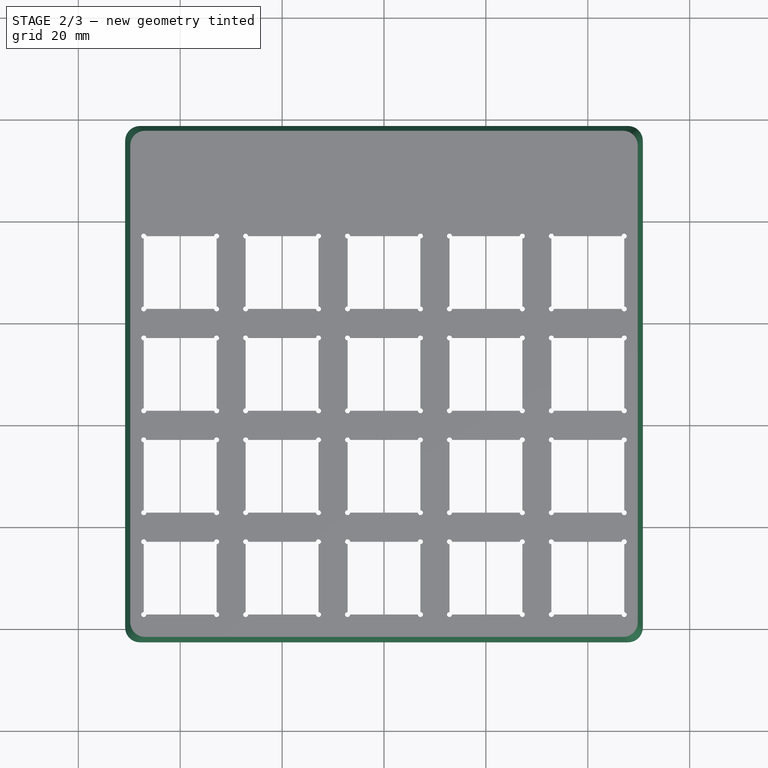
[diagram: stage 2 of 3 — top view after this stage's code; geometry added in this stage tinted green]
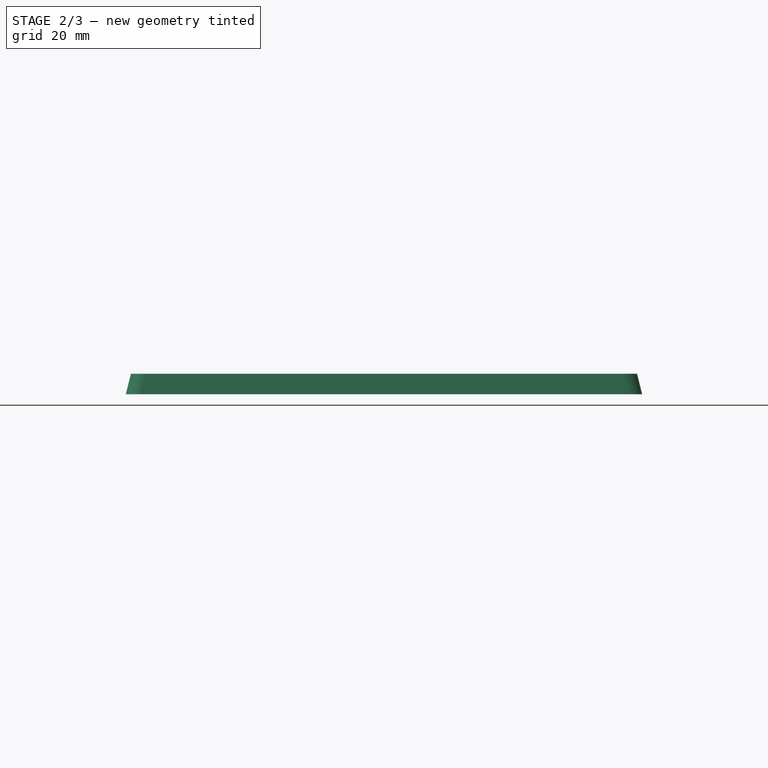
[diagram: stage 2 of 3 — right view after this stage's code; geometry added in this stage tinted green]
FEATURE [Sketcher::SketchObject] Sketch002
  ExternalGeometry = -> [Pocket]
  MapMode = 5
  Placement = pos=(0,-42.55,0) rot=(1,0,0;1.5708rad)
  Support = -> [Pocket]
  sketch-geometry (6):
    g0: LineSegment StartX=-50.8 StartY=0 StartZ=0 EndX=-49.8 EndY=4 EndZ=0
    g1: LineSegment StartX=-49.8 StartY=4 StartZ=0 EndX=-50.8 EndY=4 EndZ=0
    g2: LineSegment StartX=50.8 StartY=0 StartZ=0 EndX=49.8 EndY=4 EndZ=0
    g3: LineSegment StartX=49.8 StartY=4 StartZ=0 EndX=50.8 EndY=4 EndZ=0
    g4: LineSegment StartX=50.8 StartY=4 StartZ=0 EndX=50.8 EndY=0 EndZ=0
    g5: LineSegment StartX=-50.8 StartY=0 StartZ=0 EndX=-50.8 EndY=4 EndZ=0
  constraints (14):
    c: Coincident(g-5,g0)
    c: PointOnObject(g0,g-3)
    c: Coincident(g0,g1)
    c: Coincident(g1,g-5)
    c: DistanceX(g1,g1) = 1
    c: Coincident(g-4,g2)
    c: PointOnObject(g2,g-3)
    c: Coincident(g2,g3)
    c: Coincident(g3,g-4)
    c: Coincident(g3,g4)
    c: Coincident(g4,g2)
    c: DistanceX(g3,g3) = 1
    c: Coincident(g5,g0)
    c: Coincident(g5,g1)
FEATURE [PartDesign::Pocket] Pocket001
  BaseFeature = -> Pocket
  Length = 5
  Length2 = 100
  Profile = -> Sketch002
  Type = 1
FEATURE [Sketcher::SketchObject] Sketch003
  ExternalGeometry = -> [Pocket001]
  MapMode = 5
  Placement = pos=(-32.85,0,0) rot=(0.57735,-0.57735,-0.57735;2.0944rad)
  Support = -> [Pocket001]
  sketch-geometry (6):
    g0: LineSegment StartX=-58.8 StartY=-1.8e-15 StartZ=0 EndX=-57.8 EndY=4 EndZ=0
    g1: LineSegment StartX=-57.8 StartY=4 StartZ=0 EndX=-58.8 EndY=4 EndZ=0
    g2: LineSegment StartX=-58.8 StartY=4 StartZ=0 EndX=-58.8 EndY=-1.8e-15 EndZ=0
    g3: LineSegment StartX=42.55 StartY=4 StartZ=0 EndX=41.55 EndY=4 EndZ=0
    g4: LineSegment StartX=41.55 StartY=4 StartZ=0 EndX=42.55 EndY=0 EndZ=0
    g5: LineSegment StartX=42.55 StartY=0 StartZ=0 EndX=42.55 EndY=4 EndZ=0
  constraints (14):
    c: PointOnObject(g0,g-4)
    c: Coincident(g0,g1)
    c: Coincident(g1,g-5)
    c: Coincident(g1,g2)
    c: DistanceX(g1,g1) = 1
    c: Coincident(g0,g2)
    c: Coincident(g0,g-5)
    c: Coincident(g-4,g3)
    c: PointOnObject(g3,g-4)
    c: Coincident(g3,g4)
    c: Coincident(g4,g5)
    c: Coincident(g5,g3)
    c: Coincident(g4,g-3)
    c: DistanceX(g3,g3) = 1
FEATURE [PartDesign::Pocket] Pocket002
  BaseFeature = -> Pocket001
  Length = 100
  Length2 = 100
  Profile = -> Sketch003
  Type = 4
FEATURE [PartDesign::Fillet] Fillet
  Base = -> Pocket002 [Edge13,Edge14,Edge11,Edge9]
  BaseFeature = -> Pocket002
  Radius = 3
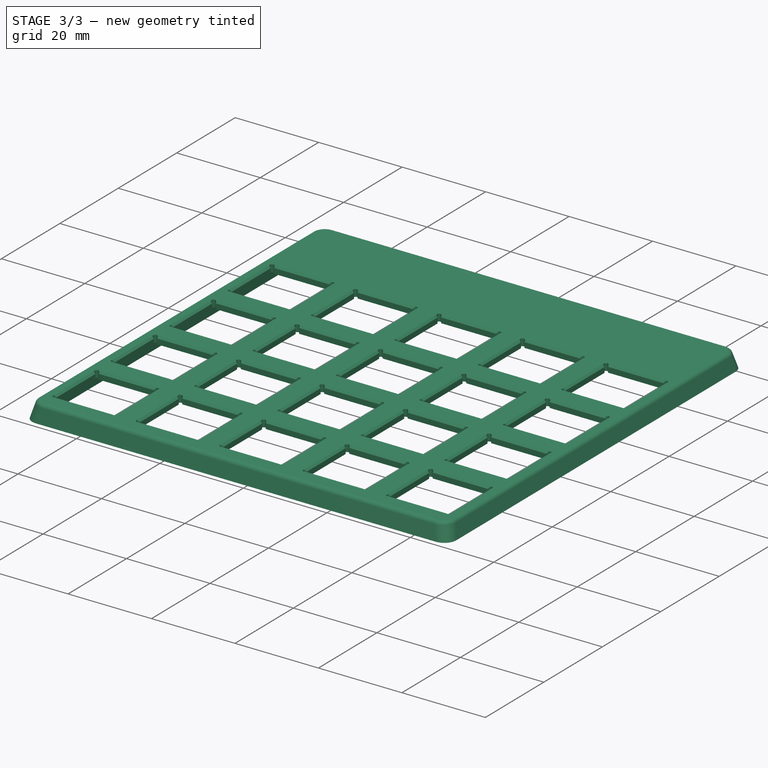
[diagram: stage 3 of 3 — iso view after this stage's code; geometry added in this stage tinted green]
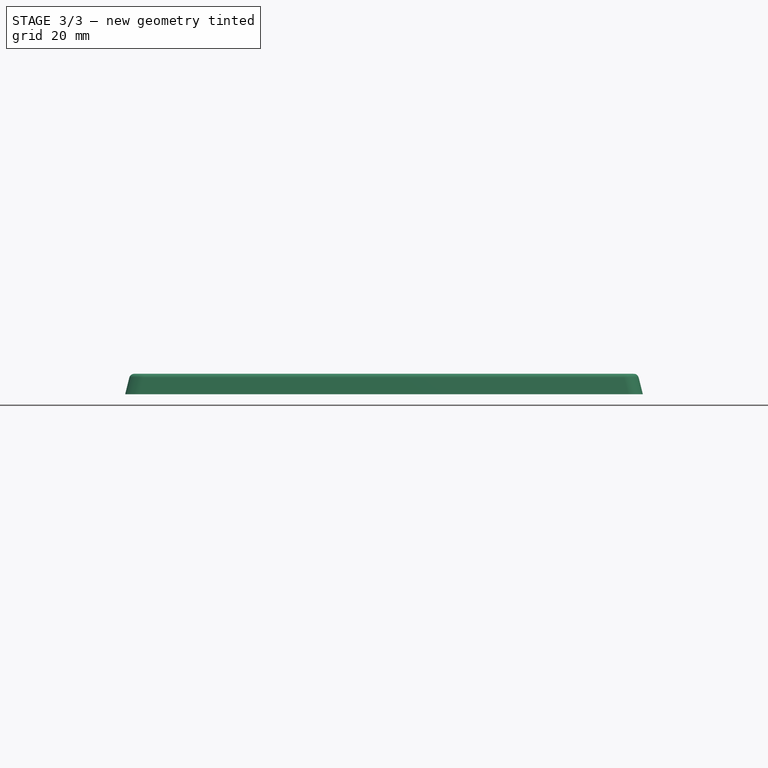
[diagram: stage 3 of 3 — front view after this stage's code; geometry added in this stage tinted green]
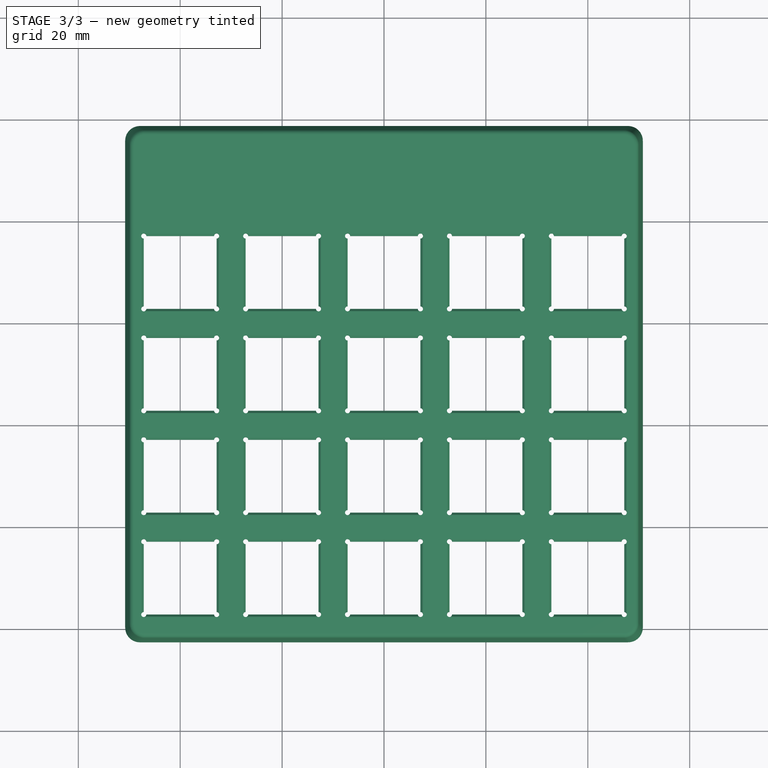
[diagram: stage 3 of 3 — top view after this stage's code; geometry added in this stage tinted green]
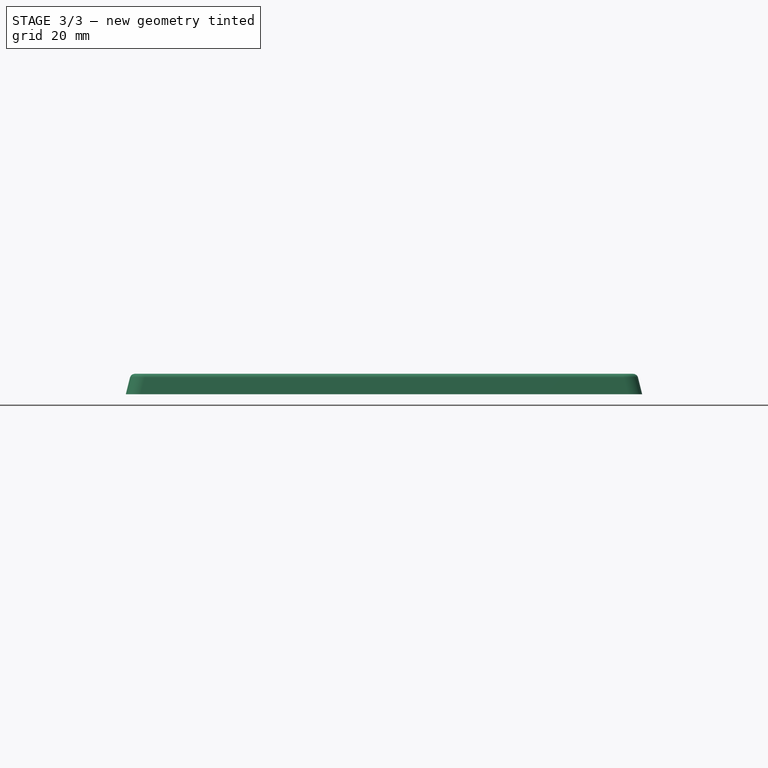
[diagram: stage 3 of 3 — right view after this stage's code; geometry added in this stage tinted green]
FEATURE [PartDesign::Fillet] Fillet001
  Base = -> Fillet [Edge15]
  BaseFeature = -> Fillet
  Radius = 1
FEATURE [PartDesign::Chamfer] Chamfer
  Base = -> Fillet001 [Edge179,Edge183,Edge184,Edge180,Edge159,Edge160,Edge156,Edge155,Edge163,Edge167,Edge168,Edge164,Edge171,Edge175,Edge176,Edge172,Edge147,Edge151,Edge152,Edge148,Edge140,Edge144,Edge143,Edge139,Edge116,Edge115,Edge119,Edge120,Edge128,Edge124,Edge123,Edge127,Edge132,Edge131,Edge135,Edge136,Edge107,Edge111,Edge112,Edge108,+40 more]
  BaseFeature = -> Fillet001
  Size = 0.45
FEATURE [PartDesign::Body] Body
  Group = -> [Sketch,Pad,Sketch001,Pocket,Sketch002,Pocket001,Sketch003,Pocket002,Fillet,Fillet001,Chamfer]
  Origin = -> Origin
  Tip = -> Chamfer
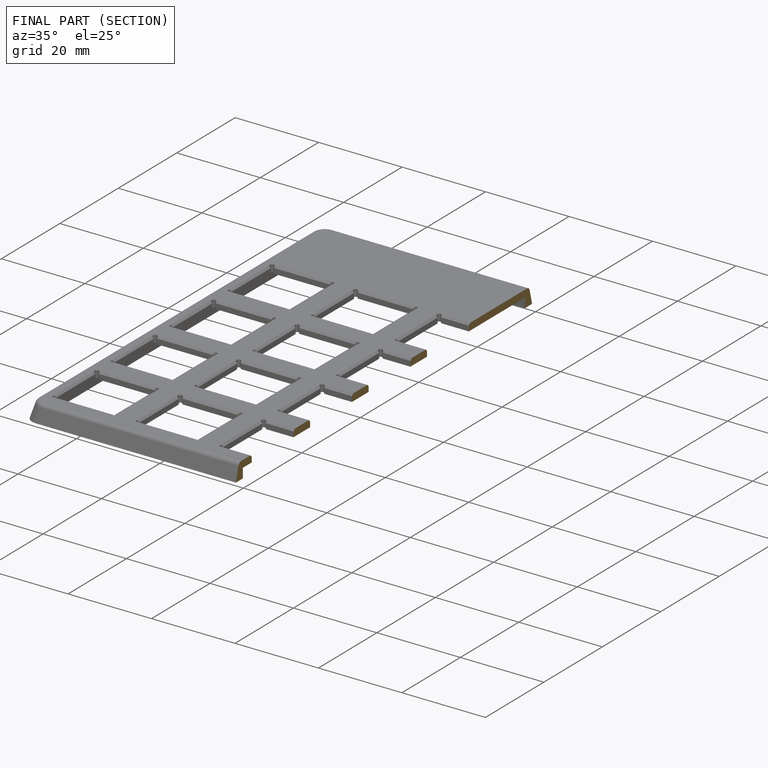
[diagram: finished part — half-section view (interior)]
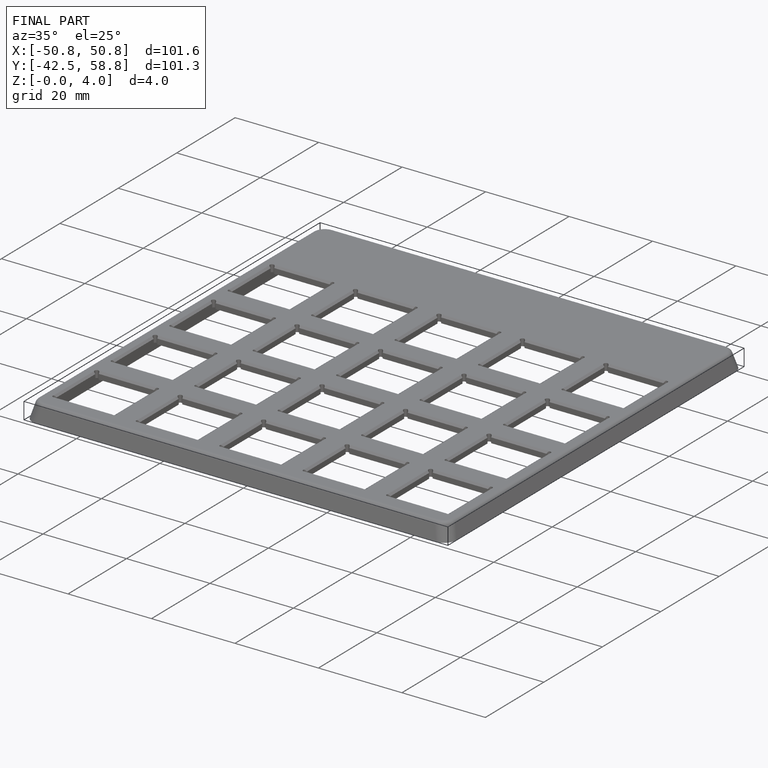
[diagram: finished part — iso view with bounding-box wireframe]
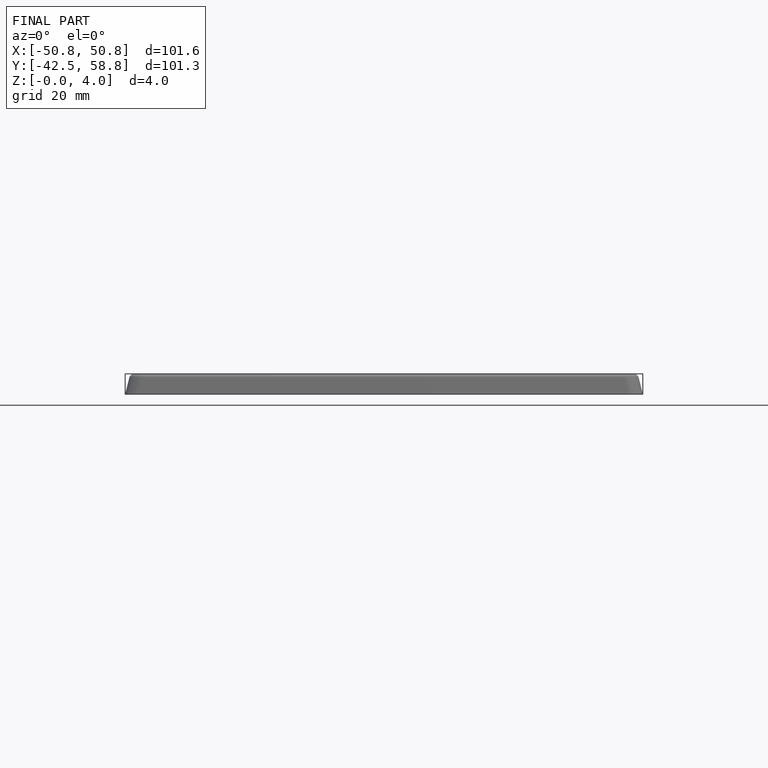
[diagram: finished part — front view with bounding-box wireframe]
